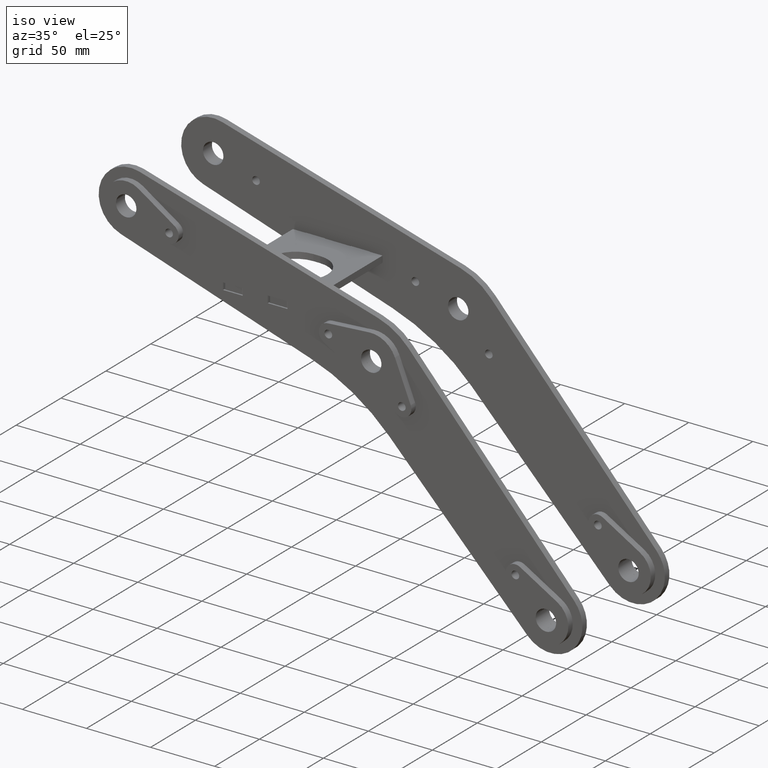
[diagram: clean part render]
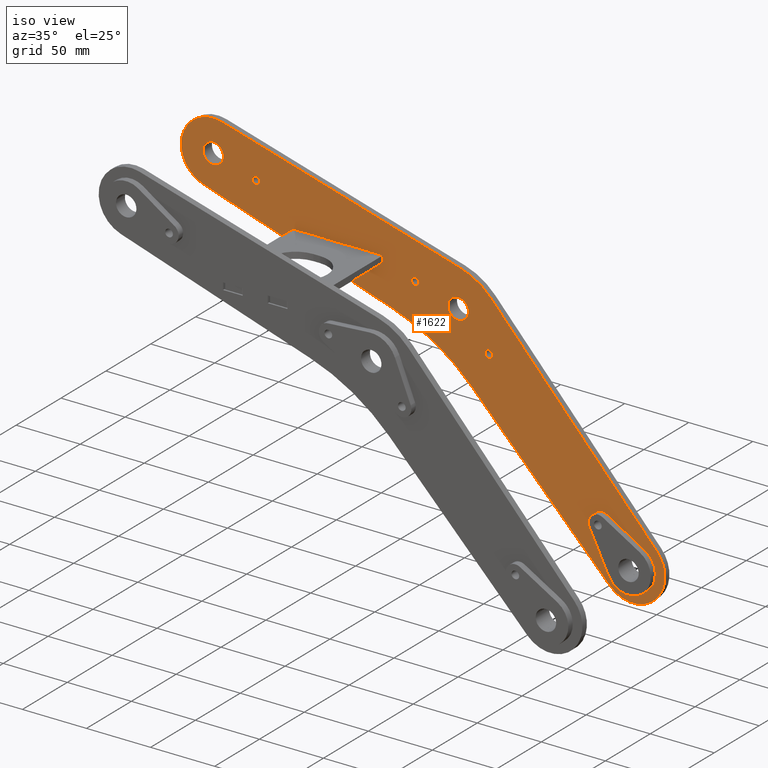
[diagram: same view with one face highlighted and labeled with its STEP entity id]
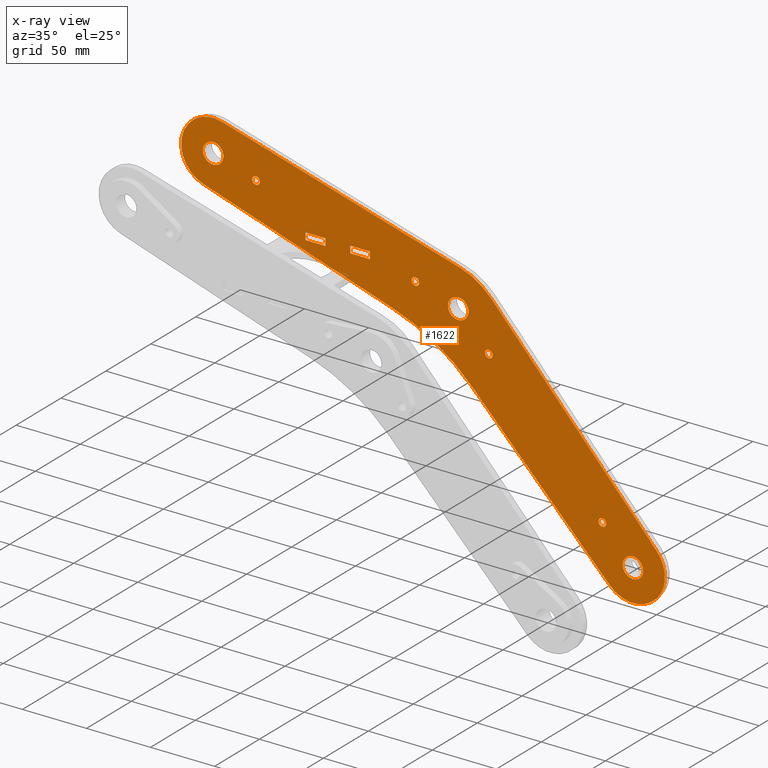
[diagram: x-ray of the same camera — body ghosted, the highlighted face saturated]
A machine part, iso view. The second image highlights one B-rep face of the part: STEP entity #1622.
The next image is the same camera in x-ray: the body ghosted, the highlighted face saturated — about 0% of this face is hidden behind the body in this view.
In plain terms, the highlighted planar face has unit normal (0, -1, -0).
Its self-contained STEP definition (entity closure, byte-faithful):
#1 = AXIS2_PLACEMENT_3D ( 'NONE', #1367, #1005, #3356 ) ;
#7 = AXIS2_PLACEMENT_3D ( 'NONE', #3671, #3372, #733 ) ;
#9 = CARTESIAN_POINT ( 'NONE',  ( 186.0810326296388553, -78.57081748244732466, 0.000000000000000000 ) ) ;
#24 = DIRECTION ( 'NONE',  ( -1.000000000000000000, 0.000000000000000000, 0.000000000000000000 ) ) ;
#50 = CARTESIAN_POINT ( 'NONE',  ( -38.00000000000000711, 3.673940397442059868E-16, 0.000000000000000000 ) ) ;
#55 = CIRCLE ( 'NONE', #2719, 3.000000000000002665 ) ;
#95 = ORIENTED_EDGE ( 'NONE', *, *, #1598, .T. ) ;
#105 = ORIENTED_EDGE ( 'NONE', *, *, #284, .F. ) ;
#116 = VECTOR ( 'NONE', #3269, 1000.000000000000114 ) ;
#118 = DIRECTION ( 'NONE',  ( -0.9998476951563911586, -0.01745240643728353941, -0.000000000000000000 ) ) ;
#120 = EDGE_CURVE ( 'NONE', #1341, #959, #1098, .T. ) ;
#124 = CARTESIAN_POINT ( 'NONE',  ( -200.4363101609320950, -24.99619237890977530, 0.000000000000000000 ) ) ;
#126 = EDGE_LOOP ( 'NONE', ( #3105, #3111, #1457, #195 ) ) ;
#152 = VERTEX_POINT ( 'NONE', #611 ) ;
#175 = ORIENTED_EDGE ( 'NONE', *, *, #3761, .T. ) ;
#191 = CARTESIAN_POINT ( 'NONE',  ( 19.96048074662445160, 21.24448015517938160, 0.000000000000000000 ) ) ;
#195 = ORIENTED_EDGE ( 'NONE', *, *, #2333, .T. ) ;
#217 = DIRECTION ( 'NONE',  ( 0.000000000000000000, 0.000000000000000000, 1.000000000000000000 ) ) ;
#219 = CARTESIAN_POINT ( 'NONE',  ( 161.0848402507290302, -121.8654926784849835, 0.000000000000000000 ) ) ;
#224 = EDGE_LOOP ( 'NONE', ( #3344, #3169 ) ) ;
#240 = CARTESIAN_POINT ( 'NONE',  ( -118.8407654579053627, -19.05120652197093634, 0.000000000000000000 ) ) ;
#263 = LINE ( 'NONE', #1121, #632 ) ;
#274 = LINE ( 'NONE', #1454, #2903 ) ;
#282 = CARTESIAN_POINT ( 'NONE',  ( 142.8941916244323806, -82.50000000000000000, 0.000000000000000000 ) ) ;
#284 = EDGE_CURVE ( 'NONE', #3037, #2939, #520, .T. ) ;
#315 = CIRCLE ( 'NONE', #1295, 24.99999999999999289 ) ;
#337 = CARTESIAN_POINT ( 'NONE',  ( -35.00000000000000000, 0.000000000000000000, 0.000000000000000000 ) ) ;
#349 = VERTEX_POINT ( 'NONE', #2788 ) ;
#360 = DIRECTION ( 'NONE',  ( 0.000000000000000000, 0.000000000000000000, 1.000000000000000000 ) ) ;
#361 = CARTESIAN_POINT ( 'NONE',  ( 30.31088913245535110, -17.50000000000000000, 0.000000000000000000 ) ) ;
#378 = CARTESIAN_POINT ( 'NONE',  ( -86.94890620470168585, -3.654151174475197550, 6.938893903907228378E-15 ) ) ;
#379 = CIRCLE ( 'NONE', #7, 49.99999999999998579 ) ;
#389 = ORIENTED_EDGE ( 'NONE', *, *, #2804, .T. ) ;
#391 = EDGE_CURVE ( 'NONE', #959, #1713, #1506, .T. ) ;
#415 = EDGE_CURVE ( 'NONE', #1308, #2235, #449, .T. ) ;
#426 = CARTESIAN_POINT ( 'NONE',  ( -104.1136722160745620, -14.54868226924099517, 6.938893903907228378E-15 ) ) ;
#439 = VERTEX_POINT ( 'NONE', #2867 ) ;
#440 = LINE ( 'NONE', #2565, #694 ) ;
#449 = LINE ( 'NONE', #426, #3772 ) ;
#466 = ORIENTED_EDGE ( 'NONE', *, *, #2994, .F. ) ;
#478 = ORIENTED_EDGE ( 'NONE', *, *, #1597, .F. ) ;
#499 = AXIS2_PLACEMENT_3D ( 'NONE', #2847, #862, #1661 ) ;
#520 = CIRCLE ( 'NONE', #713, 8.000000000000007105 ) ;
#528 = DIRECTION ( 'NONE',  ( 0.000000000000000000, 0.000000000000000000, 1.000000000000000000 ) ) ;
#551 = DIRECTION ( 'NONE',  ( 0.000000000000000000, 0.000000000000000000, 1.000000000000000000 ) ) ;
#559 = ORIENTED_EDGE ( 'NONE', *, *, #2592, .F. ) ;
#561 = CIRCLE ( 'NONE', #2594, 150.0000000000000000 ) ;
#562 = VECTOR ( 'NONE', #743, 1000.000000000000000 ) ;
#564 = EDGE_CURVE ( 'NONE', #3661, #152, #3709, .T. ) ;
#570 = AXIS2_PLACEMENT_3D ( 'NONE', #2797, #1325, #2858 ) ;
#573 = CARTESIAN_POINT ( 'NONE',  ( 145.8941916244323806, -82.50000000000000000, 0.000000000000000000 ) ) ;
#576 = CARTESIAN_POINT ( 'NONE',  ( 173.2050807568876110, -100.0000000000001990, 0.000000000000000000 ) ) ;
#591 = ORIENTED_EDGE ( 'NONE', *, *, #120, .T. ) ;
#593 = CARTESIAN_POINT ( 'NONE',  ( 181.2050807568876394, -100.0000000000001990, 0.000000000000000000 ) ) ;
#611 = CARTESIAN_POINT ( 'NONE',  ( -208.0000000000000284, 9.797174393178845379E-16, 0.000000000000000000 ) ) ;
#628 = VERTEX_POINT ( 'NONE', #822 ) ;
#632 = VECTOR ( 'NONE', #3559, 1000.000000000000000 ) ;
#642 = DIRECTION ( 'NONE',  ( 0.000000000000000000, 0.000000000000000000, 1.000000000000000000 ) ) ;
#649 = CARTESIAN_POINT ( 'NONE',  ( -35.00000000000000000, 0.000000000000000000, 0.000000000000000000 ) ) ;
#660 = CARTESIAN_POINT ( 'NONE',  ( 27.31088913245535110, -17.50000000000000000, 0.000000000000000000 ) ) ;
#662 = VERTEX_POINT ( 'NONE', #573 ) ;
#672 = EDGE_CURVE ( 'NONE', #3355, #628, #274, .T. ) ;
#673 = LINE ( 'NONE', #378, #2540 ) ;
#694 = VECTOR ( 'NONE', #1904, 1000.000000000000114 ) ;
#706 = VERTEX_POINT ( 'NONE', #50 ) ;
#713 = AXIS2_PLACEMENT_3D ( 'NONE', #3588, #3313, #3290 ) ;
#729 = DIRECTION ( 'NONE',  ( 1.000000000000000000, 0.000000000000000000, 0.000000000000000000 ) ) ;
#733 = DIRECTION ( 'NONE',  ( 1.000000000000000000, 0.000000000000000000, 0.000000000000000000 ) ) ;
#737 = FACE_BOUND ( 'NONE', #3057, .T. ) ;
#743 = DIRECTION ( 'NONE',  ( -0.2923717047227235577, 0.9563047559630395433, -1.346463662689436485E-33 ) ) ;
#757 = ORIENTED_EDGE ( 'NONE', *, *, #3607, .T. ) ;
#775 = FACE_BOUND ( 'NONE', #1151, .T. ) ;
#779 = VERTEX_POINT ( 'NONE', #2748 ) ;
#791 = FACE_BOUND ( 'NONE', #3819, .T. ) ;
#796 = DIRECTION ( 'NONE',  ( 0.9563047559630395433, 0.2923717047227235577, 1.232595164407830946E-32 ) ) ;
#805 = CARTESIAN_POINT ( 'NONE',  ( -105.6924794215772607, -9.384636587040581901, 6.938893903907228378E-15 ) ) ;
#822 = CARTESIAN_POINT ( 'NONE',  ( -85.37009899919897293, -8.818196856675612594, 6.938893903907228378E-15 ) ) ;
#833 = ORIENTED_EDGE ( 'NONE', *, *, #672, .T. ) ;
#834 = AXIS2_PLACEMENT_3D ( 'NONE', #2846, #2825, #1606 ) ;
#840 = VERTEX_POINT ( 'NONE', #3326 ) ;
#852 = LINE ( 'NONE', #240, #1920 ) ;
#861 = CARTESIAN_POINT ( 'NONE',  ( -200.0000000000000000, 0.000000000000000000, 0.000000000000000000 ) ) ;
#862 = DIRECTION ( 'NONE',  ( 0.000000000000000000, 0.000000000000000000, 1.000000000000000000 ) ) ;
#868 = CARTESIAN_POINT ( 'NONE',  ( 142.8941916244323806, -82.50000000000000000, 0.000000000000000000 ) ) ;
#880 = EDGE_CURVE ( 'NONE', #1694, #3449, #2383, .T. ) ;
#887 = CARTESIAN_POINT ( 'NONE',  ( 30.31088913245535110, -17.50000000000000000, 0.000000000000000000 ) ) ;
#898 = ORIENTED_EDGE ( 'NONE', *, *, #564, .F. ) ;
#902 = EDGE_CURVE ( 'NONE', #3145, #3602, #1972, .T. ) ;
#915 = CARTESIAN_POINT ( 'NONE',  ( -200.4363101609320950, -24.99619237890977530, 0.000000000000000000 ) ) ;
#923 = EDGE_CURVE ( 'NONE', #628, #840, #3131, .T. ) ;
#942 = DIRECTION ( 'NONE',  ( 0.000000000000000000, 0.000000000000000000, 1.000000000000000000 ) ) ;
#949 = CARTESIAN_POINT ( 'NONE',  ( 0.000000000000000000, 0.000000000000000000, 0.000000000000000000 ) ) ;
#959 = VERTEX_POINT ( 'NONE', #3741 ) ;
#969 = ORIENTED_EDGE ( 'NONE', *, *, #1793, .F. ) ;
#993 = AXIS2_PLACEMENT_3D ( 'NONE', #861, #528, #3235 ) ;
#1005 = DIRECTION ( 'NONE',  ( 0.000000000000000000, 0.000000000000000000, 1.000000000000000000 ) ) ;
#1030 = CARTESIAN_POINT ( 'NONE',  ( -85.37009899919897293, -8.818196856675612594, 6.938893903907228378E-15 ) ) ;
#1043 = VERTEX_POINT ( 'NONE', #191 ) ;
#1058 = CIRCLE ( 'NONE', #3591, 3.000000000000002665 ) ;
#1075 = CARTESIAN_POINT ( 'NONE',  ( -105.6924794215772607, -9.384636587040581901, 0.000000000000000000 ) ) ;
#1079 = CARTESIAN_POINT ( 'NONE',  ( 173.2050807568876110, -100.0000000000001990, 0.000000000000000000 ) ) ;
#1091 = ORIENTED_EDGE ( 'NONE', *, *, #2806, .F. ) ;
#1098 = LINE ( 'NONE', #219, #3553 ) ;
#1121 = CARTESIAN_POINT ( 'NONE',  ( -72.22181296287088514, 0.8483730782547441729, 6.938893903907228378E-15 ) ) ;
#1151 = EDGE_LOOP ( 'NONE', ( #478, #105 ) ) ;
#1178 = VECTOR ( 'NONE', #1706, 1000.000000000000000 ) ;
#1197 = CARTESIAN_POINT ( 'NONE',  ( 25.11045735940951218, -46.49366147612066413, 0.000000000000000000 ) ) ;
#1205 = EDGE_LOOP ( 'NONE', ( #969, #3792 ) ) ;
#1246 = DIRECTION ( 'NONE',  ( 0.9563047559630395433, 0.2923717047227235577, 1.232595164407830946E-32 ) ) ;
#1250 = CARTESIAN_POINT ( 'NONE',  ( -72.22181296287088514, 0.8483730782547441729, 6.938893903907228378E-15 ) ) ;
#1251 = ORIENTED_EDGE ( 'NONE', *, *, #2550, .T. ) ;
#1281 = EDGE_LOOP ( 'NONE', ( #898, #3302 ) ) ;
#1282 = DIRECTION ( 'NONE',  ( 1.000000000000000000, 0.000000000000000000, 0.000000000000000000 ) ) ;
#1295 = AXIS2_PLACEMENT_3D ( 'NONE', #576, #551, #2614 ) ;
#1308 = VERTEX_POINT ( 'NONE', #2052 ) ;
#1321 = LINE ( 'NONE', #1360, #1549 ) ;
#1325 = DIRECTION ( 'NONE',  ( 0.000000000000000000, 0.000000000000000000, 1.000000000000000000 ) ) ;
#1341 = VERTEX_POINT ( 'NONE', #1197 ) ;
#1342 = FACE_BOUND ( 'NONE', #3456, .T. ) ;
#1360 = CARTESIAN_POINT ( 'NONE',  ( -200.4363101609320950, 24.99619237890977530, 0.000000000000000000 ) ) ;
#1367 = CARTESIAN_POINT ( 'NONE',  ( 0.000000000000000000, 0.000000000000000000, 0.000000000000000000 ) ) ;
#1373 = CIRCLE ( 'NONE', #2424, 3.000000000000002665 ) ;
#1395 = VERTEX_POINT ( 'NONE', #3634 ) ;
#1399 = LINE ( 'NONE', #805, #1178 ) ;
#1400 = EDGE_CURVE ( 'NONE', #152, #3661, #3219, .T. ) ;
#1441 = DIRECTION ( 'NONE',  ( 1.000000000000000000, 0.000000000000000000, 0.000000000000000000 ) ) ;
#1442 = DIRECTION ( 'NONE',  ( -0.2923717047227235577, 0.9563047559630395433, -1.346463662689436485E-33 ) ) ;
#1454 = CARTESIAN_POINT ( 'NONE',  ( -70.64300575736817223, -4.315672603945668762, 6.938893903907228378E-15 ) ) ;
#1457 = ORIENTED_EDGE ( 'NONE', *, *, #902, .T. ) ;
#1490 = VERTEX_POINT ( 'NONE', #660 ) ;
#1504 = CARTESIAN_POINT ( 'NONE',  ( -200.0000000000000000, 0.000000000000000000, 0.000000000000000000 ) ) ;
#1506 = CIRCLE ( 'NONE', #834, 24.99999999999999289 ) ;
#1538 = AXIS2_PLACEMENT_3D ( 'NONE', #868, #1691, #1441 ) ;
#1539 = DIRECTION ( 'NONE',  ( 1.000000000000000000, 0.000000000000000000, 0.000000000000000000 ) ) ;
#1549 = VECTOR ( 'NONE', #118, 1000.000000000000114 ) ;
#1553 = DIRECTION ( 'NONE',  ( 1.000000000000000000, 0.000000000000000000, 0.000000000000000000 ) ) ;
#1555 = EDGE_CURVE ( 'NONE', #3622, #1395, #1671, .T. ) ;
#1597 = EDGE_CURVE ( 'NONE', #2939, #3037, #2224, .T. ) ;
#1598 = EDGE_CURVE ( 'NONE', #3263, #1043, #440, .T. ) ;
#1606 = DIRECTION ( 'NONE',  ( 1.000000000000000000, 0.000000000000000000, 0.000000000000000000 ) ) ;
#1615 = FACE_BOUND ( 'NONE', #2210, .T. ) ;
#1622 = ADVANCED_FACE ( 'NONE', ( #3396, #737, #1342, #1615, #791, #2174, #775, #2236, #1948, #1674 ), #2506, .T. ) ;
#1644 = EDGE_CURVE ( 'NONE', #2686, #1694, #3330, .T. ) ;
#1645 = EDGE_CURVE ( 'NONE', #1395, #3622, #1860, .T. ) ;
#1648 = CARTESIAN_POINT ( 'NONE',  ( 8.000000000000000000, 0.000000000000000000, 0.000000000000000000 ) ) ;
#1661 = DIRECTION ( 'NONE',  ( 1.000000000000000000, 0.000000000000000000, 0.000000000000000000 ) ) ;
#1671 = CIRCLE ( 'NONE', #3532, 8.000000000000000000 ) ;
#1674 = FACE_OUTER_BOUND ( 'NONE', #2730, .T. ) ;
#1691 = DIRECTION ( 'NONE',  ( 0.000000000000000000, 0.000000000000000000, 1.000000000000000000 ) ) ;
#1694 = VERTEX_POINT ( 'NONE', #124 ) ;
#1706 = DIRECTION ( 'NONE',  ( 0.2923717047227235577, -0.9563047559630395433, 1.346463662689436485E-33 ) ) ;
#1713 = VERTEX_POINT ( 'NONE', #3734 ) ;
#1732 = AXIS2_PLACEMENT_3D ( 'NONE', #887, #2060, #3635 ) ;
#1766 = DIRECTION ( 'NONE',  ( 1.000000000000000000, 0.000000000000000000, 0.000000000000000000 ) ) ;
#1793 = EDGE_CURVE ( 'NONE', #662, #3464, #2771, .T. ) ;
#1811 = ORIENTED_EDGE ( 'NONE', *, *, #3365, .F. ) ;
#1817 = VERTEX_POINT ( 'NONE', #2621 ) ;
#1824 = CARTESIAN_POINT ( 'NONE',  ( -47.61098567754208233, -177.6866175470294422, 0.000000000000000000 ) ) ;
#1846 = AXIS2_PLACEMENT_3D ( 'NONE', #1079, #2256, #3437 ) ;
#1860 = CIRCLE ( 'NONE', #1, 8.000000000000000000 ) ;
#1904 = DIRECTION ( 'NONE',  ( -0.8571673007021152202, 0.5150380749100493816, 0.000000000000000000 ) ) ;
#1920 = VECTOR ( 'NONE', #1442, 1000.000000000000000 ) ;
#1948 = FACE_BOUND ( 'NONE', #1281, .T. ) ;
#1966 = DIRECTION ( 'NONE',  ( 0.000000000000000000, 0.000000000000000000, 1.000000000000000000 ) ) ;
#1967 = CARTESIAN_POINT ( 'NONE',  ( -120.4195726634080756, -13.88716083977052307, 0.000000000000000000 ) ) ;
#1972 = LINE ( 'NONE', #2802, #3217 ) ;
#2037 = ORIENTED_EDGE ( 'NONE', *, *, #3473, .T. ) ;
#2051 = ORIENTED_EDGE ( 'NONE', *, *, #880, .T. ) ;
#2052 = CARTESIAN_POINT ( 'NONE',  ( -104.1136722160745620, -14.54868226924099872, 0.000000000000000000 ) ) ;
#2060 = DIRECTION ( 'NONE',  ( 0.000000000000000000, 0.000000000000000000, 1.000000000000000000 ) ) ;
#2102 = CIRCLE ( 'NONE', #1732, 3.000000000000002665 ) ;
#2108 = AXIS2_PLACEMENT_3D ( 'NONE', #3243, #2895, #2643 ) ;
#2174 = FACE_BOUND ( 'NONE', #1205, .T. ) ;
#2184 = CARTESIAN_POINT ( 'NONE',  ( -200.4363101609320950, 24.99619237890977530, 0.000000000000000000 ) ) ;
#2210 = EDGE_LOOP ( 'NONE', ( #559, #2443 ) ) ;
#2224 = CIRCLE ( 'NONE', #1846, 8.000000000000007105 ) ;
#2235 = VERTEX_POINT ( 'NONE', #3472 ) ;
#2236 = FACE_BOUND ( 'NONE', #224, .T. ) ;
#2256 = DIRECTION ( 'NONE',  ( 0.000000000000000000, 0.000000000000000000, 1.000000000000000000 ) ) ;
#2333 = EDGE_CURVE ( 'NONE', #3602, #1308, #1399, .T. ) ;
#2336 = ORIENTED_EDGE ( 'NONE', *, *, #923, .T. ) ;
#2344 = ORIENTED_EDGE ( 'NONE', *, *, #1644, .T. ) ;
#2355 = CIRCLE ( 'NONE', #2108, 3.000000000000002665 ) ;
#2383 = LINE ( 'NONE', #915, #116 ) ;
#2391 = CARTESIAN_POINT ( 'NONE',  ( 139.8941916244323806, -82.50000000000000000, 0.000000000000000000 ) ) ;
#2404 = EDGE_CURVE ( 'NONE', #706, #439, #2409, .T. ) ;
#2409 = CIRCLE ( 'NONE', #2662, 3.000000000000002665 ) ;
#2414 = ORIENTED_EDGE ( 'NONE', *, *, #391, .T. ) ;
#2424 = AXIS2_PLACEMENT_3D ( 'NONE', #282, #217, #1766 ) ;
#2443 = ORIENTED_EDGE ( 'NONE', *, *, #2404, .F. ) ;
#2467 = DIRECTION ( 'NONE',  ( 1.000000000000000000, 0.000000000000000000, 0.000000000000000000 ) ) ;
#2496 = DIRECTION ( 'NONE',  ( -0.9563047559630395433, -0.2923717047227235577, -1.232595164407830946E-32 ) ) ;
#2506 = PLANE ( 'NONE',  #570 ) ;
#2514 = ORIENTED_EDGE ( 'NONE', *, *, #3089, .F. ) ;
#2540 = VECTOR ( 'NONE', #1246, 1000.000000000000000 ) ;
#2550 = EDGE_CURVE ( 'NONE', #3449, #1341, #561, .T. ) ;
#2565 = CARTESIAN_POINT ( 'NONE',  ( 186.0810326296388553, -78.57081748244732466, 0.000000000000000000 ) ) ;
#2592 = EDGE_CURVE ( 'NONE', #439, #706, #55, .T. ) ;
#2594 = AXIS2_PLACEMENT_3D ( 'NONE', #1824, #3256, #24 ) ;
#2614 = DIRECTION ( 'NONE',  ( 1.000000000000000000, 0.000000000000000000, 0.000000000000000000 ) ) ;
#2621 = CARTESIAN_POINT ( 'NONE',  ( -162.0000000000000000, 0.000000000000000000, 0.000000000000000000 ) ) ;
#2634 = DIRECTION ( 'NONE',  ( -0.9563047559630395433, -0.2923717047227235577, -1.232595164407830946E-32 ) ) ;
#2643 = DIRECTION ( 'NONE',  ( 1.000000000000000000, 0.000000000000000000, 0.000000000000000000 ) ) ;
#2662 = AXIS2_PLACEMENT_3D ( 'NONE', #337, #942, #1553 ) ;
#2686 = VERTEX_POINT ( 'NONE', #2184 ) ;
#2719 = AXIS2_PLACEMENT_3D ( 'NONE', #649, #3002, #729 ) ;
#2725 = CARTESIAN_POINT ( 'NONE',  ( 165.2050807568876110, -100.0000000000001990, 0.000000000000000000 ) ) ;
#2730 = EDGE_LOOP ( 'NONE', ( #175, #757, #2344, #2051, #1251, #591, #2414, #389, #95 ) ) ;
#2748 = CARTESIAN_POINT ( 'NONE',  ( 33.31088913245535821, -17.50000000000000000, 0.000000000000000000 ) ) ;
#2771 = CIRCLE ( 'NONE', #1538, 3.000000000000002665 ) ;
#2788 = CARTESIAN_POINT ( 'NONE',  ( -6.664043320742175425, 28.37849987789320139, 0.000000000000000000 ) ) ;
#2797 = CARTESIAN_POINT ( 'NONE',  ( -5.791422998877997941, -21.61388487992635632, 0.000000000000000000 ) ) ;
#2802 = CARTESIAN_POINT ( 'NONE',  ( -120.4195726634080756, -13.88716083977052307, 0.000000000000000000 ) ) ;
#2804 = EDGE_CURVE ( 'NONE', #1713, #3263, #315, .T. ) ;
#2806 = EDGE_CURVE ( 'NONE', #1817, #3479, #3653, .T. ) ;
#2817 = CARTESIAN_POINT ( 'NONE',  ( -200.0000000000000000, 0.000000000000000000, 0.000000000000000000 ) ) ;
#2825 = DIRECTION ( 'NONE',  ( 0.000000000000000000, 0.000000000000000000, 1.000000000000000000 ) ) ;
#2835 = AXIS2_PLACEMENT_3D ( 'NONE', #1504, #642, #1282 ) ;
#2846 = CARTESIAN_POINT ( 'NONE',  ( 173.2050807568876110, -100.0000000000001990, 0.000000000000000000 ) ) ;
#2847 = CARTESIAN_POINT ( 'NONE',  ( -165.0000000000000000, 0.000000000000000000, 0.000000000000000000 ) ) ;
#2858 = DIRECTION ( 'NONE',  ( 1.000000000000000000, 0.000000000000000000, -0.000000000000000000 ) ) ;
#2867 = CARTESIAN_POINT ( 'NONE',  ( -32.00000000000000000, 0.000000000000000000, 0.000000000000000000 ) ) ;
#2895 = DIRECTION ( 'NONE',  ( 0.000000000000000000, 0.000000000000000000, 1.000000000000000000 ) ) ;
#2903 = VECTOR ( 'NONE', #2634, 1000.000000000000000 ) ;
#2939 = VERTEX_POINT ( 'NONE', #593 ) ;
#2984 = VERTEX_POINT ( 'NONE', #1250 ) ;
#2994 = EDGE_CURVE ( 'NONE', #779, #1490, #1058, .T. ) ;
#3002 = DIRECTION ( 'NONE',  ( 0.000000000000000000, 0.000000000000000000, 1.000000000000000000 ) ) ;
#3037 = VERTEX_POINT ( 'NONE', #2725 ) ;
#3057 = EDGE_LOOP ( 'NONE', ( #833, #2336, #2037, #3566 ) ) ;
#3089 = EDGE_CURVE ( 'NONE', #1490, #779, #2102, .T. ) ;
#3105 = ORIENTED_EDGE ( 'NONE', *, *, #415, .T. ) ;
#3111 = ORIENTED_EDGE ( 'NONE', *, *, #3373, .T. ) ;
#3131 = LINE ( 'NONE', #1030, #562 ) ;
#3143 = DIRECTION ( 'NONE',  ( 1.000000000000000000, 0.000000000000000000, 0.000000000000000000 ) ) ;
#3145 = VERTEX_POINT ( 'NONE', #1967 ) ;
#3154 = AXIS2_PLACEMENT_3D ( 'NONE', #2817, #1966, #3143 ) ;
#3169 = ORIENTED_EDGE ( 'NONE', *, *, #1645, .F. ) ;
#3217 = VECTOR ( 'NONE', #796, 1000.000000000000000 ) ;
#3219 = CIRCLE ( 'NONE', #2835, 8.000000000000007105 ) ;
#3235 = DIRECTION ( 'NONE',  ( 1.000000000000000000, 0.000000000000000000, 0.000000000000000000 ) ) ;
#3243 = CARTESIAN_POINT ( 'NONE',  ( -165.0000000000000000, 0.000000000000000000, 0.000000000000000000 ) ) ;
#3256 = DIRECTION ( 'NONE',  ( -0.000000000000000000, -0.000000000000000000, -1.000000000000000000 ) ) ;
#3263 = VERTEX_POINT ( 'NONE', #9 ) ;
#3269 = DIRECTION ( 'NONE',  ( 0.9998476951563911586, -0.01745240643728373023, 0.000000000000000000 ) ) ;
#3280 = CARTESIAN_POINT ( 'NONE',  ( -168.0000000000000000, 3.673940397442044091E-16, 0.000000000000000000 ) ) ;
#3290 = DIRECTION ( 'NONE',  ( 1.000000000000000000, 0.000000000000000000, 0.000000000000000000 ) ) ;
#3294 = CARTESIAN_POINT ( 'NONE',  ( -44.99312471194955521, -27.70946327357076555, 0.000000000000000000 ) ) ;
#3302 = ORIENTED_EDGE ( 'NONE', *, *, #1400, .F. ) ;
#3313 = DIRECTION ( 'NONE',  ( 0.000000000000000000, 0.000000000000000000, 1.000000000000000000 ) ) ;
#3326 = CARTESIAN_POINT ( 'NONE',  ( -86.94890620470168585, -3.654151174475197550, 6.938893903907228378E-15 ) ) ;
#3327 = EDGE_CURVE ( 'NONE', #2984, #3355, #263, .T. ) ;
#3330 = CIRCLE ( 'NONE', #3154, 24.99999999999999289 ) ;
#3340 = DIRECTION ( 'NONE',  ( 0.000000000000000000, 0.000000000000000000, 1.000000000000000000 ) ) ;
#3344 = ORIENTED_EDGE ( 'NONE', *, *, #1555, .F. ) ;
#3355 = VERTEX_POINT ( 'NONE', #3499 ) ;
#3356 = DIRECTION ( 'NONE',  ( 1.000000000000000000, 0.000000000000000000, 0.000000000000000000 ) ) ;
#3365 = EDGE_CURVE ( 'NONE', #3479, #1817, #2355, .T. ) ;
#3372 = DIRECTION ( 'NONE',  ( 0.000000000000000000, 0.000000000000000000, 1.000000000000000000 ) ) ;
#3373 = EDGE_CURVE ( 'NONE', #2235, #3145, #852, .T. ) ;
#3396 = FACE_BOUND ( 'NONE', #126, .T. ) ;
#3437 = DIRECTION ( 'NONE',  ( 1.000000000000000000, 0.000000000000000000, 0.000000000000000000 ) ) ;
#3449 = VERTEX_POINT ( 'NONE', #3294 ) ;
#3456 = EDGE_LOOP ( 'NONE', ( #1091, #1811 ) ) ;
#3464 = VERTEX_POINT ( 'NONE', #2391 ) ;
#3472 = CARTESIAN_POINT ( 'NONE',  ( -118.8407654579053627, -19.05120652197093634, 6.938893903907228378E-15 ) ) ;
#3473 = EDGE_CURVE ( 'NONE', #840, #2984, #673, .T. ) ;
#3479 = VERTEX_POINT ( 'NONE', #3280 ) ;
#3499 = CARTESIAN_POINT ( 'NONE',  ( -70.64300575736815802, -4.315672603945670538, 0.000000000000000000 ) ) ;
#3532 = AXIS2_PLACEMENT_3D ( 'NONE', #949, #360, #1539 ) ;
#3553 = VECTOR ( 'NONE', #3733, 1000.000000000000227 ) ;
#3559 = DIRECTION ( 'NONE',  ( 0.2923717047227235577, -0.9563047559630395433, 1.346463662689436485E-33 ) ) ;
#3566 = ORIENTED_EDGE ( 'NONE', *, *, #3327, .T. ) ;
#3588 = CARTESIAN_POINT ( 'NONE',  ( 173.2050807568876110, -100.0000000000001990, 0.000000000000000000 ) ) ;
#3591 = AXIS2_PLACEMENT_3D ( 'NONE', #361, #3340, #2467 ) ;
#3602 = VERTEX_POINT ( 'NONE', #1075 ) ;
#3607 = EDGE_CURVE ( 'NONE', #349, #2686, #1321, .T. ) ;
#3622 = VERTEX_POINT ( 'NONE', #1648 ) ;
#3634 = CARTESIAN_POINT ( 'NONE',  ( -8.000000000000000000, 9.797174393178825657E-16, 0.000000000000000000 ) ) ;
#3635 = DIRECTION ( 'NONE',  ( 1.000000000000000000, 0.000000000000000000, 0.000000000000000000 ) ) ;
#3653 = CIRCLE ( 'NONE', #499, 3.000000000000002665 ) ;
#3661 = VERTEX_POINT ( 'NONE', #3731 ) ;
#3671 = CARTESIAN_POINT ( 'NONE',  ( -5.791422998877997941, -21.61388487992635632, 0.000000000000000000 ) ) ;
#3709 = CIRCLE ( 'NONE', #993, 8.000000000000007105 ) ;
#3731 = CARTESIAN_POINT ( 'NONE',  ( -192.0000000000000000, 0.000000000000000000, 0.000000000000000000 ) ) ;
#3733 = DIRECTION ( 'NONE',  ( 0.8746197071393919664, -0.4848096202463438309, -0.000000000000000000 ) ) ;
#3734 = CARTESIAN_POINT ( 'NONE',  ( 198.2050807568876110, -100.0000000000001990, 0.000000000000000000 ) ) ;
#3741 = CARTESIAN_POINT ( 'NONE',  ( 161.0848402507290302, -121.8654926784849835, 0.000000000000000000 ) ) ;
#3761 = EDGE_CURVE ( 'NONE', #1043, #349, #379, .T. ) ;
#3772 = VECTOR ( 'NONE', #2496, 1000.000000000000000 ) ;
#3792 = ORIENTED_EDGE ( 'NONE', *, *, #3803, .F. ) ;
#3803 = EDGE_CURVE ( 'NONE', #3464, #662, #1373, .T. ) ;
#3819 = EDGE_LOOP ( 'NONE', ( #466, #2514 ) ) ;